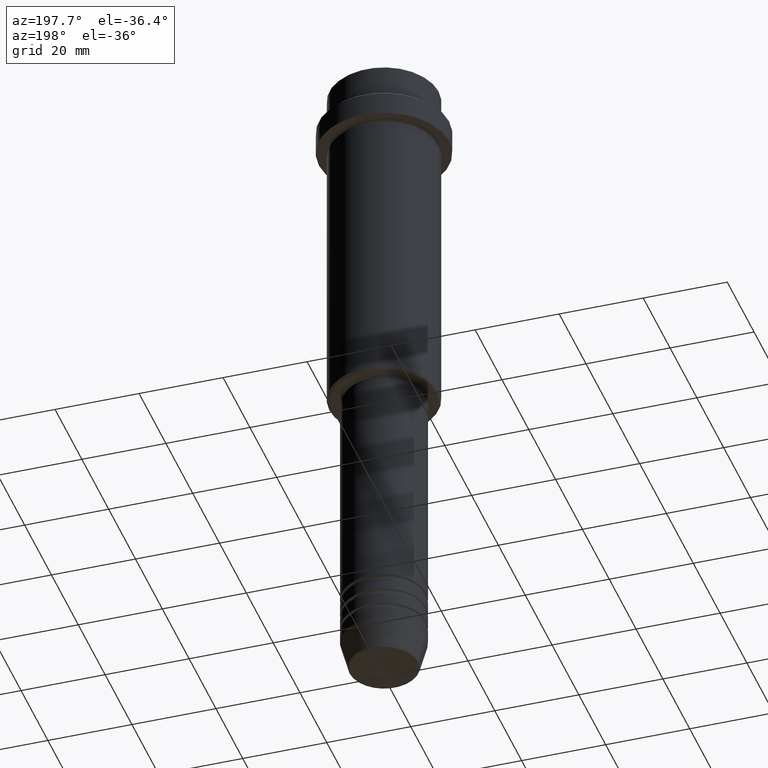
[diagram: clean part render]
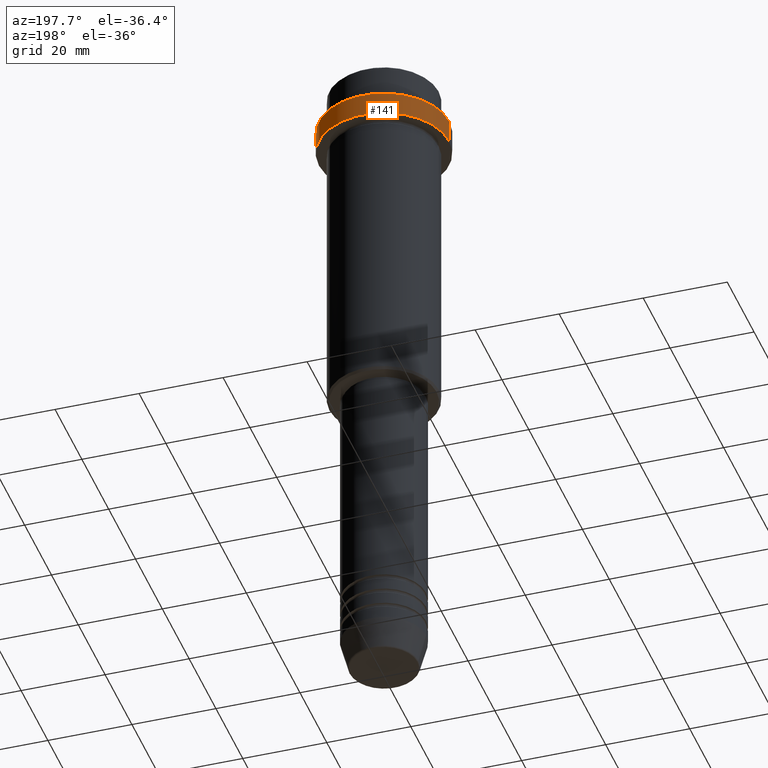
[diagram: same view with one face highlighted and labeled with its STEP entity id]
A machine part, auxiliary view. The second image highlights one B-rep face of the part: STEP entity #141.
In plain terms, the highlighted cylindrical surface (partial cylindrical patch) has radius 15.5 mm, axis along (-0, -0, 1).
Its self-contained STEP definition (entity closure, byte-faithful):
#5 = ORIENTED_EDGE ( 'NONE', *, *, #476, .T. ) ;
#21 = DIRECTION ( 'NONE',  ( 1.000000000000000000, 0.000000000000000000, 0.000000000000000000 ) ) ;
#71 = DIRECTION ( 'NONE',  ( -0.000000000000000000, -0.000000000000000000, 1.000000000000000000 ) ) ;
#141 = ADVANCED_FACE ( 'NONE', ( #1152 ), #711, .T. ) ;
#168 = LINE ( 'NONE', #480, #1034 ) ;
#173 = LINE ( 'NONE', #835, #174 ) ;
#174 = VECTOR ( 'NONE', #71, 1000.000000000000000 ) ;
#177 = DIRECTION ( 'NONE',  ( 1.000000000000000000, 0.000000000000000000, 0.000000000000000000 ) ) ;
#178 = EDGE_LOOP ( 'NONE', ( #5, #479, #794, #1206 ) ) ;
#261 = CIRCLE ( 'NONE', #1098, 15.50000000000000000 ) ;
#321 = VERTEX_POINT ( 'NONE', #1211 ) ;
#355 = CARTESIAN_POINT ( 'NONE',  ( 0.000000000000000000, 0.000000000000000000, -15.00000000000000000 ) ) ;
#467 = DIRECTION ( 'NONE',  ( 1.000000000000000000, 0.000000000000000000, 0.000000000000000000 ) ) ;
#476 = EDGE_CURVE ( 'NONE', #321, #1137, #261, .T. ) ;
#479 = ORIENTED_EDGE ( 'NONE', *, *, #1273, .T. ) ;
#480 = CARTESIAN_POINT ( 'NONE',  ( -15.50000000000000000, 1.898202538678397557E-15, 0.000000000000000000 ) ) ;
#634 = VERTEX_POINT ( 'NONE', #1020 ) ;
#707 = EDGE_CURVE ( 'NONE', #321, #1038, #173, .T. ) ;
#710 = CARTESIAN_POINT ( 'NONE',  ( 0.000000000000000000, 0.000000000000000000, -9.499999999999998224 ) ) ;
#711 = CYLINDRICAL_SURFACE ( 'NONE', #827, 15.50000000000000000 ) ;
#794 = ORIENTED_EDGE ( 'NONE', *, *, #954, .T. ) ;
#817 = CARTESIAN_POINT ( 'NONE',  ( 0.000000000000000000, 0.000000000000000000, 0.000000000000000000 ) ) ;
#827 = AXIS2_PLACEMENT_3D ( 'NONE', #817, #1248, #177 ) ;
#835 = CARTESIAN_POINT ( 'NONE',  ( 15.50000000000000000, 0.000000000000000000, 0.000000000000000000 ) ) ;
#860 = AXIS2_PLACEMENT_3D ( 'NONE', #710, #948, #21 ) ;
#912 = CIRCLE ( 'NONE', #860, 15.50000000000000000 ) ;
#918 = CARTESIAN_POINT ( 'NONE',  ( -15.50000000000000000, 1.898202538678397557E-15, -15.00000000000000000 ) ) ;
#948 = DIRECTION ( 'NONE',  ( 0.000000000000000000, 0.000000000000000000, -1.000000000000000000 ) ) ;
#954 = EDGE_CURVE ( 'NONE', #634, #1038, #912, .T. ) ;
#1020 = CARTESIAN_POINT ( 'NONE',  ( -15.50000000000000000, 1.898202538678397557E-15, -9.499999999999998224 ) ) ;
#1034 = VECTOR ( 'NONE', #1360, 1000.000000000000000 ) ;
#1038 = VERTEX_POINT ( 'NONE', #1340 ) ;
#1098 = AXIS2_PLACEMENT_3D ( 'NONE', #355, #1236, #467 ) ;
#1137 = VERTEX_POINT ( 'NONE', #918 ) ;
#1152 = FACE_OUTER_BOUND ( 'NONE', #178, .T. ) ;
#1206 = ORIENTED_EDGE ( 'NONE', *, *, #707, .F. ) ;
#1211 = CARTESIAN_POINT ( 'NONE',  ( 15.50000000000000000, 0.000000000000000000, -15.00000000000000000 ) ) ;
#1236 = DIRECTION ( 'NONE',  ( -0.000000000000000000, -0.000000000000000000, 1.000000000000000000 ) ) ;
#1248 = DIRECTION ( 'NONE',  ( -0.000000000000000000, -0.000000000000000000, 1.000000000000000000 ) ) ;
#1273 = EDGE_CURVE ( 'NONE', #1137, #634, #168, .T. ) ;
#1340 = CARTESIAN_POINT ( 'NONE',  ( 15.50000000000000000, 0.000000000000000000, -9.499999999999998224 ) ) ;
#1360 = DIRECTION ( 'NONE',  ( -0.000000000000000000, -0.000000000000000000, 1.000000000000000000 ) ) ;